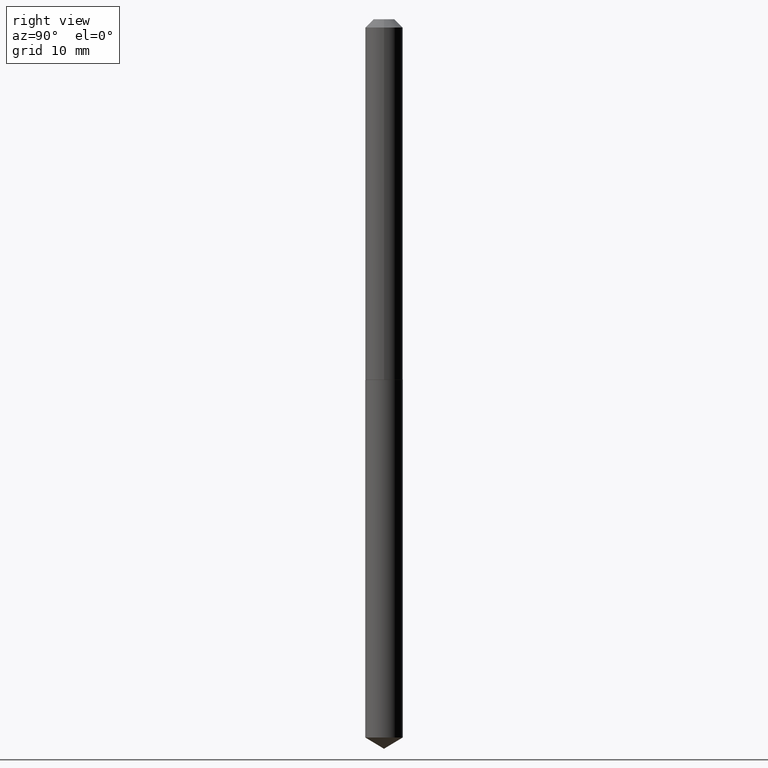
[diagram: clean part render]
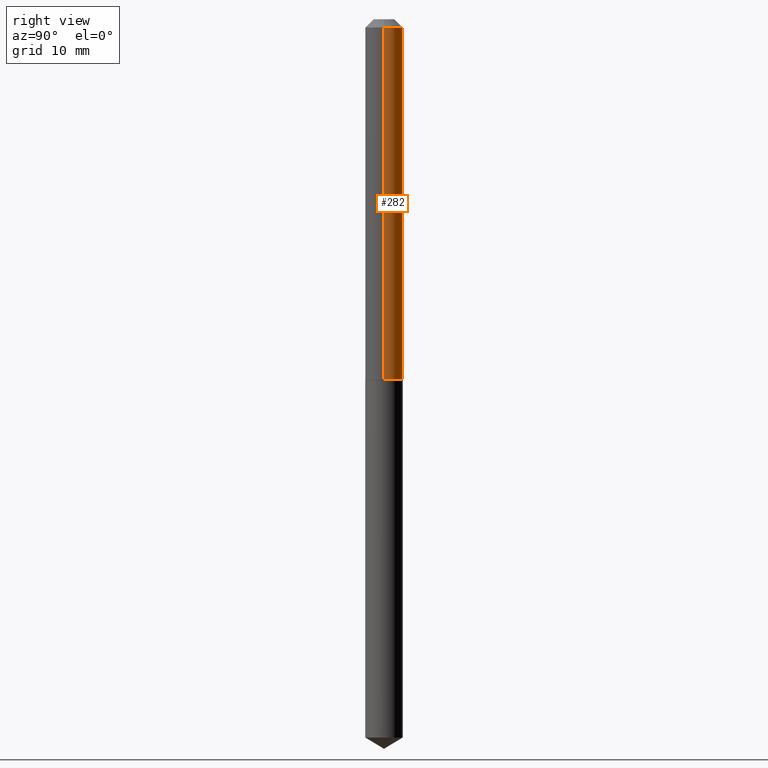
[diagram: same view with one face highlighted and labeled with its STEP entity id]
A machine part, right view. The second image highlights one B-rep face of the part: STEP entity #282.
In plain terms, the highlighted cylindrical surface (edge-blend (fillet) strip) has radius 1.7996 mm, axis along (-0, 0, 1).
Its self-contained STEP definition (entity closure, byte-faithful):
#11 = DIRECTION ( 'NONE',  ( -2.445468806185136877E-29, 3.491481338843145188E-15, 1.000000000000000000 ) ) ;
#17 = LINE ( 'NONE', #293, #224 ) ;
#20 = FACE_OUTER_BOUND ( 'NONE', #288, .T. ) ;
#47 = EDGE_CURVE ( 'NONE', #279, #286, #271, .T. ) ;
#54 = AXIS2_PLACEMENT_3D ( 'NONE', #134, #243, #300 ) ;
#81 = DIRECTION ( 'NONE',  ( -2.445468806185136597E-29, 3.491481338843145583E-15, 1.000000000000000000 ) ) ;
#89 = ORIENTED_EDGE ( 'NONE', *, *, #229, .F. ) ;
#116 = CYLINDRICAL_SURFACE ( 'NONE', #237, 0.07085000000000007958 ) ;
#130 = CARTESIAN_POINT ( 'NONE',  ( 3.329994873382300355E-29, -4.754350139102710568E-15, -1.361699999999999910 ) ) ;
#134 = CARTESIAN_POINT ( 'NONE',  ( 7.642090019328601786E-31, -1.091087918388490144E-16, -0.03125000000000020123 ) ) ;
#141 = VERTEX_POINT ( 'NONE', #309 ) ;
#153 = ORIENTED_EDGE ( 'NONE', *, *, #345, .T. ) ;
#162 = EDGE_CURVE ( 'NONE', #205, #286, #280, .T. ) ;
#172 = CARTESIAN_POINT ( 'NONE',  ( -0.07085000000000016285, -4.250930610816678232E-15, -1.361699999999999910 ) ) ;
#205 = VERTEX_POINT ( 'NONE', #285 ) ;
#209 = ORIENTED_EDGE ( 'NONE', *, *, #162, .F. ) ;
#212 = VECTOR ( 'NONE', #249, 39.37007874015748143 ) ;
#224 = VECTOR ( 'NONE', #11, 39.37007874015748143 ) ;
#229 = EDGE_CURVE ( 'NONE', #141, #205, #17, .T. ) ;
#237 = AXIS2_PLACEMENT_3D ( 'NONE', #261, #372, #244 ) ;
#243 = DIRECTION ( 'NONE',  ( -2.445468806185136597E-29, 3.491481338843145583E-15, 1.000000000000000000 ) ) ;
#244 = DIRECTION ( 'NONE',  ( 1.000000000000000000, -6.982962677686266711E-15, 4.876176775795935232E-29 ) ) ;
#247 = AXIS2_PLACEMENT_3D ( 'NONE', #130, #81, #335 ) ;
#249 = DIRECTION ( 'NONE',  ( -2.445468806185136877E-29, 3.491481338843145188E-15, 1.000000000000000000 ) ) ;
#259 = CIRCLE ( 'NONE', #247, 0.07085000000000016285 ) ;
#261 = CARTESIAN_POINT ( 'NONE',  ( 0.000000000000000000, 0.000000000000000000, 0.000000000000000000 ) ) ;
#271 = LINE ( 'NONE', #359, #212 ) ;
#279 = VERTEX_POINT ( 'NONE', #172 ) ;
#280 = CIRCLE ( 'NONE', #54, 0.07084999999999999631 ) ;
#282 = ADVANCED_FACE ( 'NONE', ( #20 ), #116, .T. ) ;
#285 = CARTESIAN_POINT ( 'NONE',  ( 0.07084999999999999631, -6.038516975529210600E-16, -0.03125000000000020123 ) ) ;
#286 = VERTEX_POINT ( 'NONE', #379 ) ;
#288 = EDGE_LOOP ( 'NONE', ( #153, #365, #209, #89 ) ) ;
#293 = CARTESIAN_POINT ( 'NONE',  ( 0.07085000000000007958, -4.947429057140725510E-16, 3.454771245651424113E-30 ) ) ;
#300 = DIRECTION ( 'NONE',  ( 1.000000000000000000, -6.982962677686268288E-15, 0.000000000000000000 ) ) ;
#309 = CARTESIAN_POINT ( 'NONE',  ( 0.07085000000000016285, -5.249093044816783612E-15, -1.361699999999999910 ) ) ;
#335 = DIRECTION ( 'NONE',  ( 1.000000000000000000, -6.982962677686261189E-15, 0.000000000000000000 ) ) ;
#345 = EDGE_CURVE ( 'NONE', #141, #279, #259, .T. ) ;
#359 = CARTESIAN_POINT ( 'NONE',  ( -0.07085000000000007958, 5.034195282860315471E-16, -3.485065511445604472E-30 ) ) ;
#365 = ORIENTED_EDGE ( 'NONE', *, *, #47, .T. ) ;
#372 = DIRECTION ( 'NONE',  ( -2.445468806185136597E-29, 3.491481338843145583E-15, 1.000000000000000000 ) ) ;
#379 = CARTESIAN_POINT ( 'NONE',  ( -0.07084999999999999631, -1.928309937184747104E-15, -0.03125000000000020123 ) ) ;